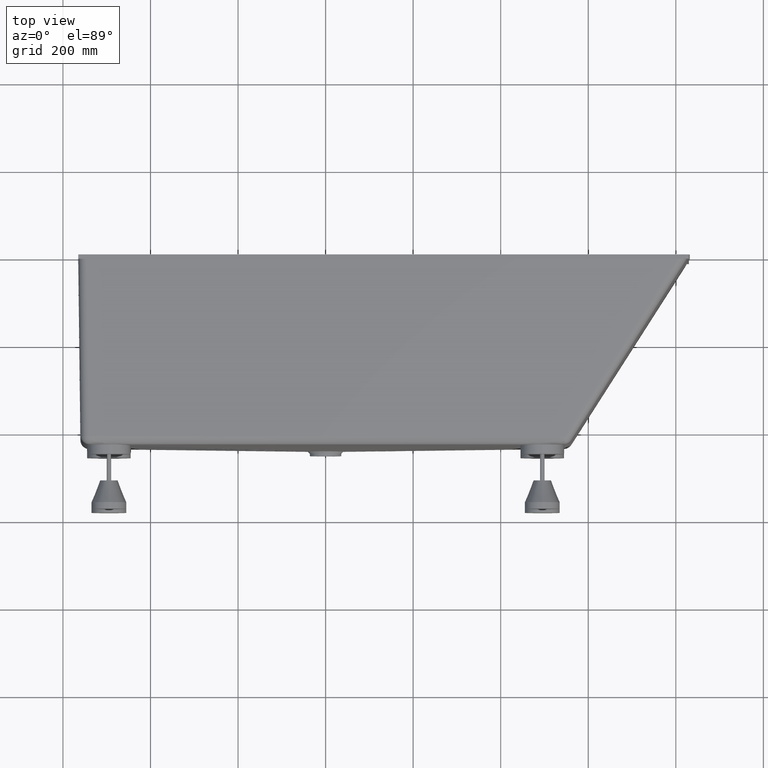
[diagram: clean part render]
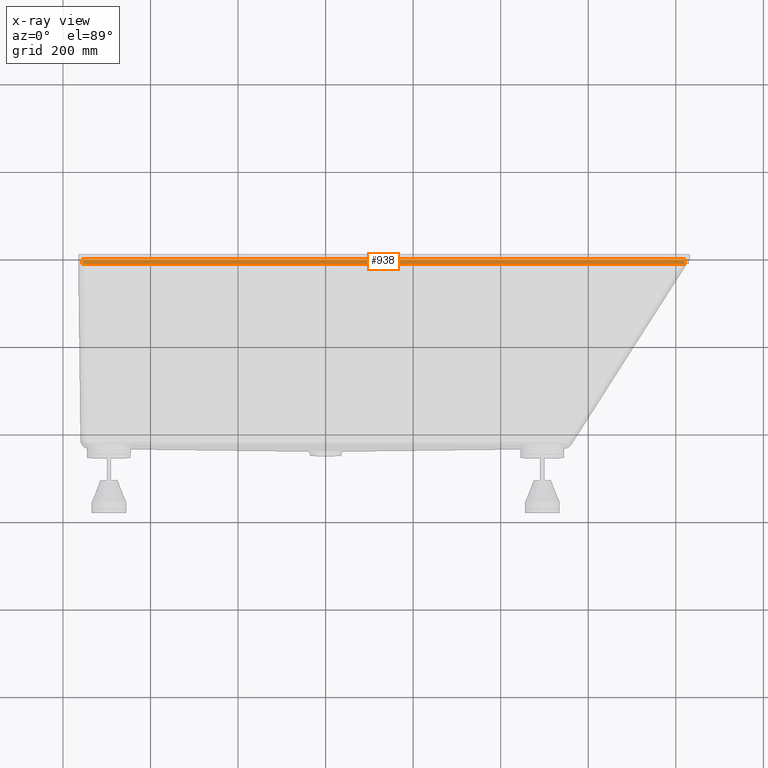
[diagram: x-ray — body ghosted, one internal face saturated and labeled with its STEP entity id]
A machine part, top view, then the same camera in x-ray: the body is ghosted and one INTERNAL B-rep face — a face not visible from any outside direction — is saturated and labeled: STEP entity #938.
In plain terms, the highlighted planar face has unit normal (0, 0, -1).
Its self-contained STEP definition (entity closure, byte-faithful):
#261 = VECTOR ( 'NONE', #399, 1000.000000000000000 ) ;
#399 = DIRECTION ( 'NONE',  ( -1.000000000000000000, -0.0000000000000000000, -0.0000000000000000000 ) ) ;
#431 = CARTESIAN_POINT ( 'NONE',  ( -554.9999999999998900, 0.0000000000000000000, -345.0000000000000600 ) ) ;
#798 = LINE ( 'NONE', #2673, #8974 ) ;
#876 = ORIENTED_EDGE ( 'NONE', *, *, #6219, .F. ) ;
#938 = ADVANCED_FACE ( 'NONE', ( #3297 ), #9073, .F. ) ;
#1247 = LINE ( 'NONE', #431, #261 ) ;
#1872 = ORIENTED_EDGE ( 'NONE', *, *, #9732, .T. ) ;
#2061 = ORIENTED_EDGE ( 'NONE', *, *, #2635, .F. ) ;
#2567 = VECTOR ( 'NONE', #6938, 1000.000000000000000 ) ;
#2635 = EDGE_CURVE ( 'NONE', #6209, #4194, #798, .T. ) ;
#2673 = CARTESIAN_POINT ( 'NONE',  ( -554.9999999999998900, -10.00000000000000000, -345.0000000000000600 ) ) ;
#2696 = DIRECTION ( 'NONE',  ( -1.000000000000000000, -0.0000000000000000000, -0.0000000000000000000 ) ) ;
#2870 = EDGE_LOOP ( 'NONE', ( #1872, #876, #2061, #6419 ) ) ;
#2936 = EDGE_CURVE ( 'NONE', #6209, #4886, #6750, .T. ) ;
#3297 = FACE_OUTER_BOUND ( 'NONE', #2870, .T. ) ;
#4194 = VERTEX_POINT ( 'NONE', #9852 ) ;
#4564 = LINE ( 'NONE', #7319, #2567 ) ;
#4886 = VERTEX_POINT ( 'NONE', #6037 ) ;
#5302 = DIRECTION ( 'NONE',  ( -1.000000000000000000, 0.0000000000000000000, -0.0000000000000000000 ) ) ;
#6037 = CARTESIAN_POINT ( 'NONE',  ( 820.0000000000002300, 0.0000000000000000000, -345.0000000000000600 ) ) ;
#6209 = VERTEX_POINT ( 'NONE', #7052 ) ;
#6219 = EDGE_CURVE ( 'NONE', #4194, #9943, #4564, .T. ) ;
#6300 = DIRECTION ( 'NONE',  ( 0.0000000000000000000, 1.000000000000000000, 0.0000000000000000000 ) ) ;
#6419 = ORIENTED_EDGE ( 'NONE', *, *, #2936, .T. ) ;
#6750 = LINE ( 'NONE', #9622, #7664 ) ;
#6938 = DIRECTION ( 'NONE',  ( 0.0000000000000000000, 1.000000000000000000, 0.0000000000000000000 ) ) ;
#7052 = CARTESIAN_POINT ( 'NONE',  ( 820.0000000000002300, -10.00000000000000000, -345.0000000000000600 ) ) ;
#7319 = CARTESIAN_POINT ( 'NONE',  ( -554.9999999999998900, -10.00000000000000000, -345.0000000000000600 ) ) ;
#7339 = CARTESIAN_POINT ( 'NONE',  ( -554.9999999999998900, 0.0000000000000000000, -345.0000000000000600 ) ) ;
#7475 = AXIS2_PLACEMENT_3D ( 'NONE', #9747, #10023, #5302 ) ;
#7664 = VECTOR ( 'NONE', #6300, 1000.000000000000000 ) ;
#8974 = VECTOR ( 'NONE', #2696, 1000.000000000000000 ) ;
#9073 = PLANE ( 'NONE',  #7475 ) ;
#9622 = CARTESIAN_POINT ( 'NONE',  ( 820.0000000000002300, -10.00000000000000000, -345.0000000000000600 ) ) ;
#9732 = EDGE_CURVE ( 'NONE', #4886, #9943, #1247, .T. ) ;
#9747 = CARTESIAN_POINT ( 'NONE',  ( -554.9999999999998900, -10.00000000000000000, -345.0000000000000600 ) ) ;
#9852 = CARTESIAN_POINT ( 'NONE',  ( -554.9999999999998900, -10.00000000000000000, -345.0000000000000600 ) ) ;
#9943 = VERTEX_POINT ( 'NONE', #7339 ) ;
#10023 = DIRECTION ( 'NONE',  ( 0.0000000000000000000, 0.0000000000000000000, -1.000000000000000000 ) ) ;